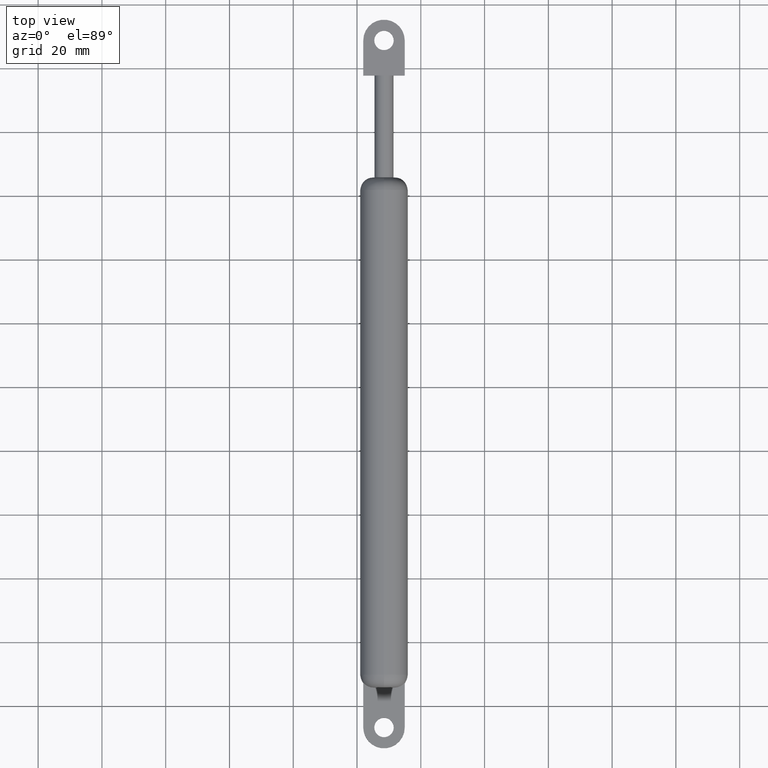
[diagram: clean part render]
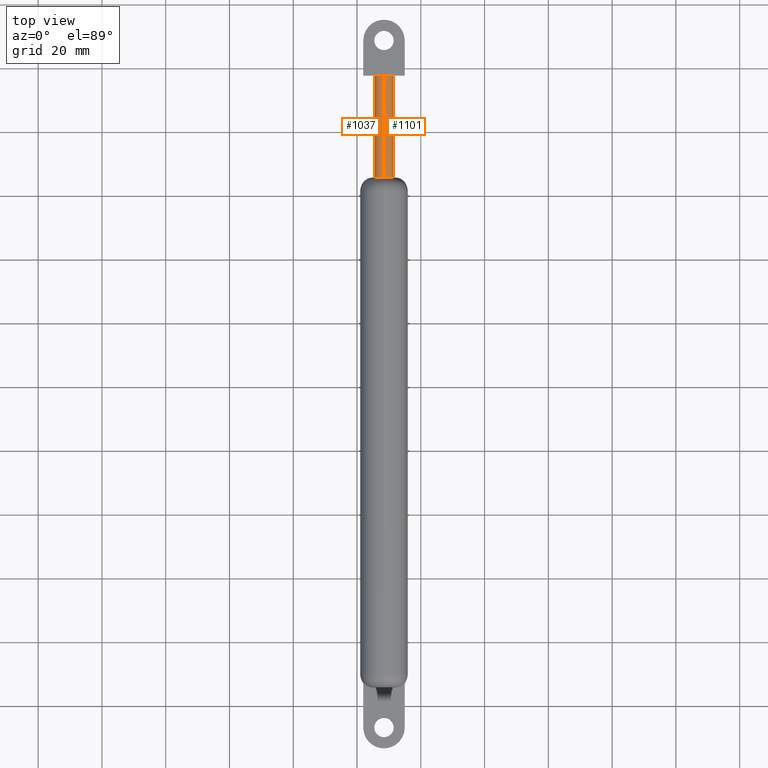
[diagram: same view with one multi-face feature highlighted, each face labeled with its STEP entity id]
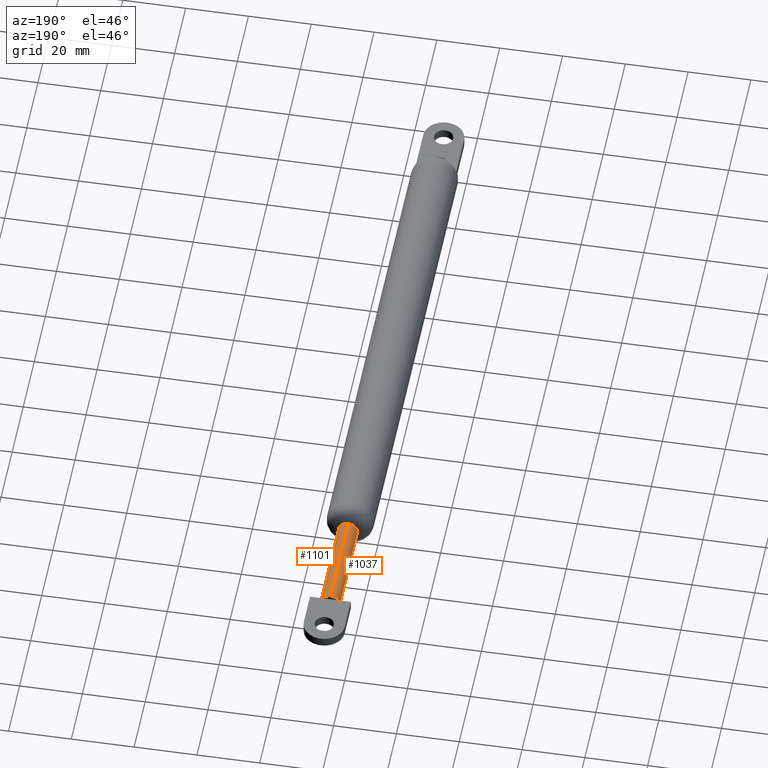
[diagram: same view with one multi-face feature highlighted, each face labeled with its STEP entity id]
A machine part, top view. The highlighted faces form ONE feature: a constant-radius fillet chain: 2 tangent blend faces with common blend radius 3 mm. The faces share edges in the B-rep.
A second angle (auxiliary view) of the same feature is appended — it is thin or edge-on in the first view.
Their STEP definitions:
[1] entity #1101 (Cylinder):
#95 = AXIS2_PLACEMENT_3D ( 'NONE', #138, #137, #136 ) ;
#136 = DIRECTION ( 'NONE',  ( 0.0000000000000000000, 0.0000000000000000000, -1.000000000000000000 ) ) ;
#137 = DIRECTION ( 'NONE',  ( -0.0000000000000000000, -1.000000000000000000, -0.0000000000000000000 ) ) ;
#138 = CARTESIAN_POINT ( 'NONE',  ( 0.0000000000000000000, 196.0000000000000000, 0.0000000000000000000 ) ) ;
#308 = DIRECTION ( 'NONE',  ( 0.0000000000000000000, 0.0000000000000000000, 1.000000000000000000 ) ) ;
#310 = DIRECTION ( 'NONE',  ( 0.0000000000000000000, 1.000000000000000000, 0.0000000000000000000 ) ) ;
#311 = CARTESIAN_POINT ( 'NONE',  ( 0.0000000000000000000, 11.00000000000000000, 0.0000000000000000000 ) ) ;
#375 = DIRECTION ( 'NONE',  ( 0.0000000000000000000, 0.0000000000000000000, 1.000000000000000000 ) ) ;
#376 = DIRECTION ( 'NONE',  ( 0.0000000000000000000, 1.000000000000000000, 0.0000000000000000000 ) ) ;
#377 = CARTESIAN_POINT ( 'NONE',  ( 0.0000000000000000000, 11.00000000000000000, 0.0000000000000000000 ) ) ;
#386 = DIRECTION ( 'NONE',  ( 0.0000000000000000000, 0.0000000000000000000, 1.000000000000000000 ) ) ;
#387 = DIRECTION ( 'NONE',  ( 0.0000000000000000000, 1.000000000000000000, 0.0000000000000000000 ) ) ;
#388 = CARTESIAN_POINT ( 'NONE',  ( 0.0000000000000000000, 196.0000000000000000, 0.0000000000000000000 ) ) ;
#392 = DIRECTION ( 'NONE',  ( 0.0000000000000000000, 0.0000000000000000000, 1.000000000000000000 ) ) ;
#393 = DIRECTION ( 'NONE',  ( 0.0000000000000000000, 1.000000000000000000, 0.0000000000000000000 ) ) ;
#394 = CARTESIAN_POINT ( 'NONE',  ( 0.0000000000000000000, 11.00000000000000000, 0.0000000000000000000 ) ) ;
#431 = DIRECTION ( 'NONE',  ( -0.0000000000000000000, -1.000000000000000000, -0.0000000000000000000 ) ) ;
#432 = CARTESIAN_POINT ( 'NONE',  ( 3.673940397442060400E-016, 196.0000000000000000, 3.000000000000000400 ) ) ;
#435 = DIRECTION ( 'NONE',  ( -0.0000000000000000000, -1.000000000000000000, -0.0000000000000000000 ) ) ;
#436 = CARTESIAN_POINT ( 'NONE',  ( 0.0000000000000000000, 196.0000000000000000, -3.000000000000000400 ) ) ;
#470 = VECTOR ( 'NONE', #435, 1000.000000000000000 ) ;
#474 = CIRCLE ( 'NONE', #553, 3.000000000000000400 ) ;
#475 = VECTOR ( 'NONE', #431, 1000.000000000000000 ) ;
#477 = CIRCLE ( 'NONE', #546, 3.000000000000000400 ) ;
#487 = CIRCLE ( 'NONE', #512, 3.000000000000000400 ) ;
#512 = AXIS2_PLACEMENT_3D ( 'NONE', #394, #393, #392 ) ;
#529 = AXIS2_PLACEMENT_3D ( 'NONE', #311, #310, #308 ) ;
#531 = CIRCLE ( 'NONE', #529, 3.000000000000000400 ) ;
#546 = AXIS2_PLACEMENT_3D ( 'NONE', #377, #376, #375 ) ;
#553 = AXIS2_PLACEMENT_3D ( 'NONE', #388, #387, #386 ) ;
#574 = EDGE_LOOP ( 'NONE', ( #1212, #1193, #1177, #1184, #1226, #1228 ) ) ;
#591 = CYLINDRICAL_SURFACE ( 'NONE', #95, 3.000000000000000400 ) ;
#604 = FACE_OUTER_BOUND ( 'NONE', #574, .T. ) ;
#606 = VERTEX_POINT ( 'NONE', #1118 ) ;
#708 = VERTEX_POINT ( 'NONE', #1136 ) ;
#759 = VERTEX_POINT ( 'NONE', #1141 ) ;
#762 = VERTEX_POINT ( 'NONE', #1144 ) ;
#789 = VERTEX_POINT ( 'NONE', #1147 ) ;
#814 = LINE ( 'NONE', #436, #470 ) ;
#816 = LINE ( 'NONE', #432, #475 ) ;
#894 = VERTEX_POINT ( 'NONE', #1158 ) ;
#1016 = EDGE_CURVE ( 'NONE', #762, #708, #814, .T. ) ;
#1017 = EDGE_CURVE ( 'NONE', #759, #789, #816, .T. ) ;
#1023 = EDGE_CURVE ( 'NONE', #708, #894, #487, .T. ) ;
#1025 = EDGE_CURVE ( 'NONE', #762, #759, #474, .T. ) ;
#1028 = EDGE_CURVE ( 'NONE', #606, #789, #477, .T. ) ;
#1045 = EDGE_CURVE ( 'NONE', #894, #606, #531, .T. ) ;
#1101 = ADVANCED_FACE ( 'NONE', ( #604 ), #591, .T. ) ;
#1118 = CARTESIAN_POINT ( 'NONE',  ( -2.598076211353316500, 11.00000000000000000, 1.499999999999999600 ) ) ;
#1136 = CARTESIAN_POINT ( 'NONE',  ( 0.0000000000000000000, 11.00000000000000000, -3.000000000000000400 ) ) ;
#1141 = CARTESIAN_POINT ( 'NONE',  ( 3.673940397442060400E-016, 196.0000000000000000, 3.000000000000000400 ) ) ;
#1144 = CARTESIAN_POINT ( 'NONE',  ( 0.0000000000000000000, 196.0000000000000000, -3.000000000000000400 ) ) ;
#1147 = CARTESIAN_POINT ( 'NONE',  ( 3.673940397442060400E-016, 11.00000000000000000, 3.000000000000000400 ) ) ;
#1158 = CARTESIAN_POINT ( 'NONE',  ( -2.598076211353316500, 11.00000000000000000, -1.499999999999999600 ) ) ;
#1177 = ORIENTED_EDGE ( 'NONE', *, *, #1016, .T. ) ;
#1184 = ORIENTED_EDGE ( 'NONE', *, *, #1023, .T. ) ;
#1193 = ORIENTED_EDGE ( 'NONE', *, *, #1025, .F. ) ;
#1212 = ORIENTED_EDGE ( 'NONE', *, *, #1017, .F. ) ;
#1226 = ORIENTED_EDGE ( 'NONE', *, *, #1045, .T. ) ;
#1228 = ORIENTED_EDGE ( 'NONE', *, *, #1028, .T. ) ;
[2] entity #1037 (Cylinder):
#194 = DIRECTION ( 'NONE',  ( 0.0000000000000000000, 0.0000000000000000000, 1.000000000000000000 ) ) ;
#196 = DIRECTION ( 'NONE',  ( 0.0000000000000000000, 1.000000000000000000, 0.0000000000000000000 ) ) ;
#197 = CARTESIAN_POINT ( 'NONE',  ( 0.0000000000000000000, 11.00000000000000000, 0.0000000000000000000 ) ) ;
#279 = DIRECTION ( 'NONE',  ( 0.0000000000000000000, 0.0000000000000000000, 1.000000000000000000 ) ) ;
#280 = DIRECTION ( 'NONE',  ( 0.0000000000000000000, 1.000000000000000000, 0.0000000000000000000 ) ) ;
#281 = CARTESIAN_POINT ( 'NONE',  ( 0.0000000000000000000, 196.0000000000000000, 0.0000000000000000000 ) ) ;
#351 = DIRECTION ( 'NONE',  ( 0.0000000000000000000, 0.0000000000000000000, -1.000000000000000000 ) ) ;
#353 = DIRECTION ( 'NONE',  ( -0.0000000000000000000, -1.000000000000000000, -0.0000000000000000000 ) ) ;
#354 = CARTESIAN_POINT ( 'NONE',  ( 0.0000000000000000000, 196.0000000000000000, 0.0000000000000000000 ) ) ;
#355 = DIRECTION ( 'NONE',  ( 0.0000000000000000000, 0.0000000000000000000, 1.000000000000000000 ) ) ;
#356 = DIRECTION ( 'NONE',  ( 0.0000000000000000000, 1.000000000000000000, 0.0000000000000000000 ) ) ;
#357 = CARTESIAN_POINT ( 'NONE',  ( 0.0000000000000000000, 11.00000000000000000, 0.0000000000000000000 ) ) ;
#358 = DIRECTION ( 'NONE',  ( 0.0000000000000000000, 0.0000000000000000000, 1.000000000000000000 ) ) ;
#359 = DIRECTION ( 'NONE',  ( 0.0000000000000000000, 1.000000000000000000, 0.0000000000000000000 ) ) ;
#360 = CARTESIAN_POINT ( 'NONE',  ( 0.0000000000000000000, 11.00000000000000000, 0.0000000000000000000 ) ) ;
#431 = DIRECTION ( 'NONE',  ( -0.0000000000000000000, -1.000000000000000000, -0.0000000000000000000 ) ) ;
#432 = CARTESIAN_POINT ( 'NONE',  ( 3.673940397442060400E-016, 196.0000000000000000, 3.000000000000000400 ) ) ;
#435 = DIRECTION ( 'NONE',  ( -0.0000000000000000000, -1.000000000000000000, -0.0000000000000000000 ) ) ;
#436 = CARTESIAN_POINT ( 'NONE',  ( 0.0000000000000000000, 196.0000000000000000, -3.000000000000000400 ) ) ;
#459 = CIRCLE ( 'NONE', #472, 3.000000000000000400 ) ;
#470 = VECTOR ( 'NONE', #435, 1000.000000000000000 ) ;
#472 = AXIS2_PLACEMENT_3D ( 'NONE', #197, #196, #194 ) ;
#475 = VECTOR ( 'NONE', #431, 1000.000000000000000 ) ;
#494 = AXIS2_PLACEMENT_3D ( 'NONE', #357, #356, #355 ) ;
#497 = AXIS2_PLACEMENT_3D ( 'NONE', #281, #280, #279 ) ;
#498 = CIRCLE ( 'NONE', #497, 3.000000000000000400 ) ;
#507 = CIRCLE ( 'NONE', #494, 3.000000000000000400 ) ;
#535 = CIRCLE ( 'NONE', #561, 3.000000000000000400 ) ;
#556 = AXIS2_PLACEMENT_3D ( 'NONE', #354, #353, #351 ) ;
#561 = AXIS2_PLACEMENT_3D ( 'NONE', #360, #359, #358 ) ;
#636 = ORIENTED_EDGE ( 'NONE', *, *, #1053, .F. ) ;
#650 = EDGE_LOOP ( 'NONE', ( #636, #714, #691, #692, #678, #746 ) ) ;
#678 = ORIENTED_EDGE ( 'NONE', *, *, #1035, .T. ) ;
#691 = ORIENTED_EDGE ( 'NONE', *, *, #1088, .T. ) ;
#692 = ORIENTED_EDGE ( 'NONE', *, *, #1036, .T. ) ;
#706 = VERTEX_POINT ( 'NONE', #1134 ) ;
#708 = VERTEX_POINT ( 'NONE', #1136 ) ;
#714 = ORIENTED_EDGE ( 'NONE', *, *, #1017, .T. ) ;
#746 = ORIENTED_EDGE ( 'NONE', *, *, #1016, .F. ) ;
#759 = VERTEX_POINT ( 'NONE', #1141 ) ;
#761 = VERTEX_POINT ( 'NONE', #1143 ) ;
#762 = VERTEX_POINT ( 'NONE', #1144 ) ;
#789 = VERTEX_POINT ( 'NONE', #1147 ) ;
#806 = FACE_OUTER_BOUND ( 'NONE', #650, .T. ) ;
#814 = LINE ( 'NONE', #436, #470 ) ;
#816 = LINE ( 'NONE', #432, #475 ) ;
#823 = CYLINDRICAL_SURFACE ( 'NONE', #556, 3.000000000000000400 ) ;
#1016 = EDGE_CURVE ( 'NONE', #762, #708, #814, .T. ) ;
#1017 = EDGE_CURVE ( 'NONE', #759, #789, #816, .T. ) ;
#1035 = EDGE_CURVE ( 'NONE', #706, #708, #535, .T. ) ;
#1036 = EDGE_CURVE ( 'NONE', #761, #706, #507, .T. ) ;
#1037 = ADVANCED_FACE ( 'NONE', ( #806 ), #823, .T. ) ;
#1053 = EDGE_CURVE ( 'NONE', #759, #762, #498, .T. ) ;
#1088 = EDGE_CURVE ( 'NONE', #789, #761, #459, .T. ) ;
#1134 = CARTESIAN_POINT ( 'NONE',  ( 2.598076211353316500, 11.00000000000000000, -1.499999999999999600 ) ) ;
#1136 = CARTESIAN_POINT ( 'NONE',  ( 0.0000000000000000000, 11.00000000000000000, -3.000000000000000400 ) ) ;
#1141 = CARTESIAN_POINT ( 'NONE',  ( 3.673940397442060400E-016, 196.0000000000000000, 3.000000000000000400 ) ) ;
#1143 = CARTESIAN_POINT ( 'NONE',  ( 2.598076211353316500, 11.00000000000000000, 1.499999999999999600 ) ) ;
#1144 = CARTESIAN_POINT ( 'NONE',  ( 0.0000000000000000000, 196.0000000000000000, -3.000000000000000400 ) ) ;
#1147 = CARTESIAN_POINT ( 'NONE',  ( 3.673940397442060400E-016, 11.00000000000000000, 3.000000000000000400 ) ) ;